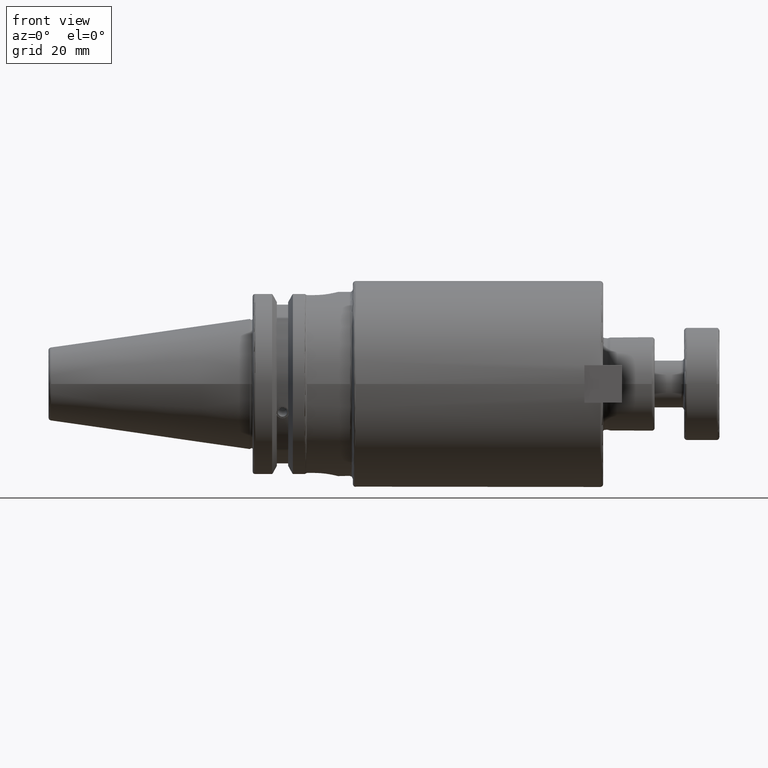
[diagram: clean part render]
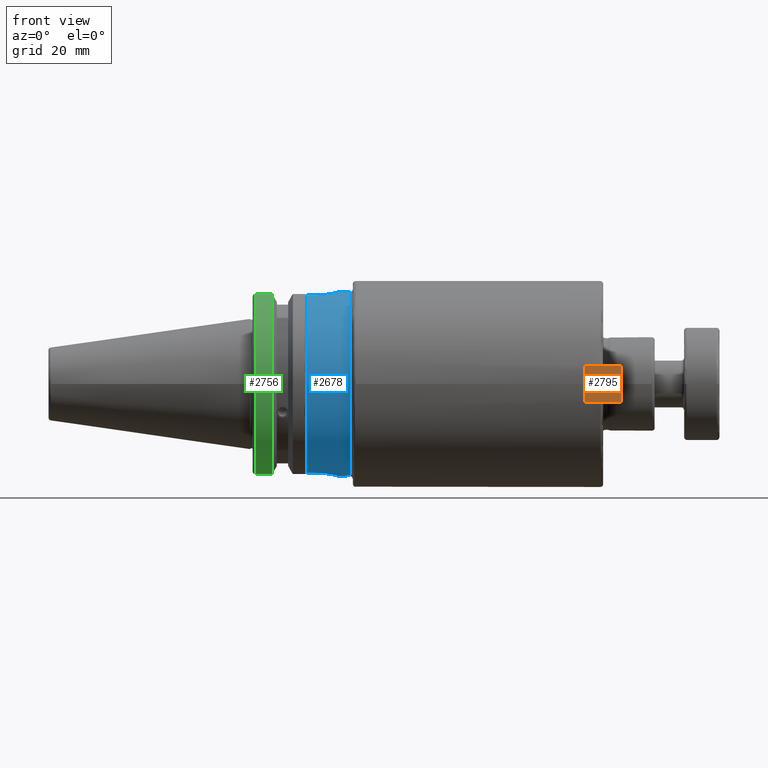
[diagram: same view with three faces highlighted in distinct colors, each labeled with its STEP entity id]
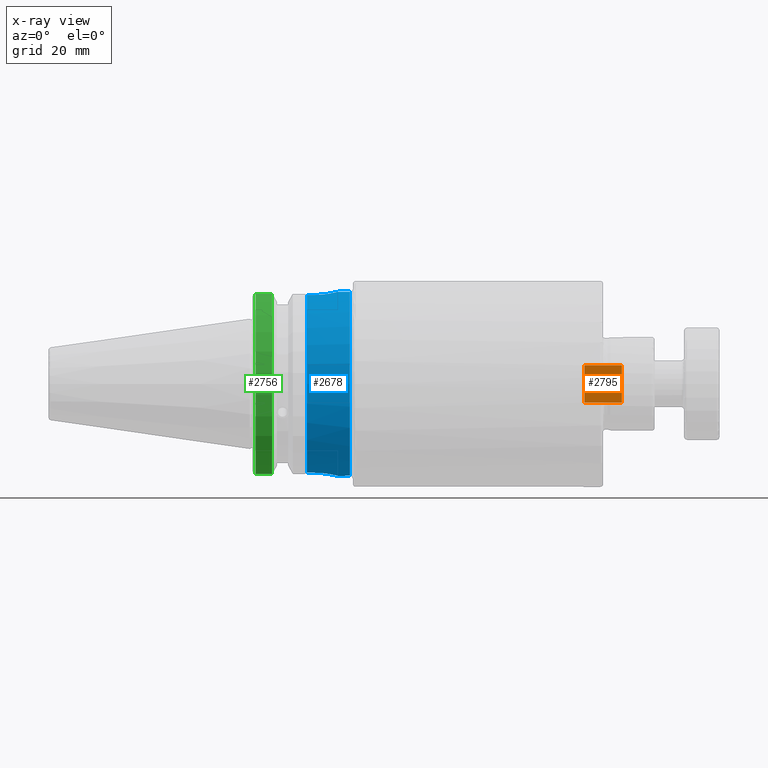
[diagram: x-ray of the same camera — body ghosted, the three highlighted faces saturated]
A machine part, front view with three faces highlighted in distinct colors.
The next image is the same camera in x-ray (body ghosted, the three faces saturated) — at least one of them is partly hidden behind the body in this view.
Their STEP definitions:

[orange] entity #2795 — the highlighted planar face has unit normal (0, -1, -0).
#191=PLANE('',#3194);
#356=FACE_OUTER_BOUND('',#537,.T.);
#537=EDGE_LOOP('',(#2436,#2437,#2438,#2439));
#860=LINE('',#5222,#1033);
#861=LINE('',#5225,#1034);
#862=LINE('',#5227,#1035);
#863=LINE('',#5228,#1036);
#1033=VECTOR('',#3913,10.);
#1034=VECTOR('',#3916,10.);
#1035=VECTOR('',#3917,10.);
#1036=VECTOR('',#3918,10.);
#1334=VERTEX_POINT('',#5215);
#1337=VERTEX_POINT('',#5220);
#1338=VERTEX_POINT('',#5224);
#1339=VERTEX_POINT('',#5226);
#1714=EDGE_CURVE('',#1334,#1337,#860,.T.);
#1715=EDGE_CURVE('',#1338,#1334,#861,.T.);
#1716=EDGE_CURVE('',#1339,#1337,#862,.T.);
#1717=EDGE_CURVE('',#1338,#1339,#863,.T.);
#2436=ORIENTED_EDGE('',*,*,#1715,.T.);
#2437=ORIENTED_EDGE('',*,*,#1714,.T.);
#2438=ORIENTED_EDGE('',*,*,#1716,.F.);
#2439=ORIENTED_EDGE('',*,*,#1717,.F.);
#2795=ADVANCED_FACE('',(#356),#191,.T.);
#3194=AXIS2_PLACEMENT_3D('',#5223,#3914,#3915);
#3913=DIRECTION('',(0.,1.,0.));
#3914=DIRECTION('center_axis',(-1.74838271594513E-16,0.,-1.));
#3915=DIRECTION('ref_axis',(-1.,0.,1.74838271594513E-16));
#3916=DIRECTION('',(-1.,0.,1.74838271594513E-16));
#3917=DIRECTION('',(-1.,0.,1.74838271594513E-16));
#3918=DIRECTION('',(0.,1.,0.));
#5215=CARTESIAN_POINT('',(-6.35,0.,-6.35));
#5220=CARTESIAN_POINT('',(-6.35,12.7,-6.35));
#5222=CARTESIAN_POINT('',(-6.35,0.,-6.35));
#5223=CARTESIAN_POINT('Origin',(6.35,0.,-6.35));
#5224=CARTESIAN_POINT('',(6.35,0.,-6.35));
#5225=CARTESIAN_POINT('',(6.35,0.,-6.35));
#5226=CARTESIAN_POINT('',(6.35,12.7,-6.35));
#5227=CARTESIAN_POINT('',(6.35,12.7,-6.35));
#5228=CARTESIAN_POINT('',(6.35,0.,-6.35));

[blue] entity #2678 — the highlighted cylindrical surface (bore or boss wall) has radius 31.25 mm, axis along (1, 0, 0).
#239=FACE_OUTER_BOUND('',#400,.T.);
#400=EDGE_LOOP('',(#1814,#1815,#1816,#1817,#1818,#1819,#1820,#1821,#1822,
#1823,#1824,#1825,#1826));
#587=CIRCLE('',#2944,31.25);
#588=CIRCLE('',#2945,31.25);
#589=CIRCLE('',#2946,31.25);
#590=CIRCLE('',#2947,31.25);
#591=CIRCLE('',#2948,31.25);
#741=LINE('',#4174,#914);
#742=LINE('',#4177,#915);
#743=LINE('',#4179,#916);
#744=LINE('',#4183,#917);
#745=LINE('',#4204,#918);
#914=VECTOR('',#3296,31.25);
#915=VECTOR('',#3299,10.);
#916=VECTOR('',#3300,10.);
#917=VECTOR('',#3303,10.);
#918=VECTOR('',#3304,10.);
#1085=B_SPLINE_CURVE_WITH_KNOTS('',3,(#4146,#4147,#4148,#4149,#4150,#4151,
#4152,#4153,#4154,#4155,#4156,#4157,#4158,#4159,#4160,#4161,#4162,#4163),
 .UNSPECIFIED.,.F.,.F.,(4,2,2,2,2,2,2,2,4),(-2.48058401696442,-2.1704846734033,
-1.86038532984218,-1.5503386691622,-1.24029200848221,-0.930245347802224,
-0.620198687122237,-0.310099343561118,0.),.UNSPECIFIED.);
#1086=B_SPLINE_CURVE_WITH_KNOTS('',3,(#4185,#4186,#4187,#4188,#4189,#4190,
#4191,#4192,#4193,#4194,#4195,#4196,#4197,#4198,#4199,#4200,#4201,#4202),
 .UNSPECIFIED.,.F.,.F.,(4,2,2,2,2,2,2,2,4),(-2.48058401696442,-2.1704846734033,
-1.86038532984218,-1.5503386691622,-1.24029200848221,-0.930245347802224,
-0.620198687122237,-0.310099343561118,0.),.UNSPECIFIED.);
#1127=VERTEX_POINT('',#4144);
#1128=VERTEX_POINT('',#4145);
#1131=VERTEX_POINT('',#4170);
#1132=VERTEX_POINT('',#4171);
#1133=VERTEX_POINT('',#4173);
#1134=VERTEX_POINT('',#4175);
#1135=VERTEX_POINT('',#4178);
#1136=VERTEX_POINT('',#4180);
#1137=VERTEX_POINT('',#4182);
#1138=VERTEX_POINT('',#4184);
#1139=VERTEX_POINT('',#4203);
#1399=EDGE_CURVE('',#1127,#1128,#1085,.T.);
#1403=EDGE_CURVE('',#1131,#1132,#587,.T.);
#1404=EDGE_CURVE('',#1131,#1133,#741,.T.);
#1405=EDGE_CURVE('',#1134,#1133,#588,.T.);
#1406=EDGE_CURVE('',#1134,#1127,#742,.T.);
#1407=EDGE_CURVE('',#1128,#1135,#743,.T.);
#1408=EDGE_CURVE('',#1136,#1135,#589,.T.);
#1409=EDGE_CURVE('',#1136,#1137,#744,.T.);
#1410=EDGE_CURVE('',#1137,#1138,#1086,.T.);
#1411=EDGE_CURVE('',#1138,#1139,#745,.T.);
#1412=EDGE_CURVE('',#1133,#1139,#590,.T.);
#1413=EDGE_CURVE('',#1132,#1131,#591,.T.);
#1814=ORIENTED_EDGE('',*,*,#1403,.F.);
#1815=ORIENTED_EDGE('',*,*,#1404,.T.);
#1816=ORIENTED_EDGE('',*,*,#1405,.F.);
#1817=ORIENTED_EDGE('',*,*,#1406,.T.);
#1818=ORIENTED_EDGE('',*,*,#1399,.T.);
#1819=ORIENTED_EDGE('',*,*,#1407,.T.);
#1820=ORIENTED_EDGE('',*,*,#1408,.F.);
#1821=ORIENTED_EDGE('',*,*,#1409,.T.);
#1822=ORIENTED_EDGE('',*,*,#1410,.T.);
#1823=ORIENTED_EDGE('',*,*,#1411,.T.);
#1824=ORIENTED_EDGE('',*,*,#1412,.F.);
#1825=ORIENTED_EDGE('',*,*,#1404,.F.);
#1826=ORIENTED_EDGE('',*,*,#1413,.F.);
#2633=CYLINDRICAL_SURFACE('',#2943,31.25);
#2678=ADVANCED_FACE('',(#239),#2633,.T.);
#2943=AXIS2_PLACEMENT_3D('',#4169,#3292,#3293);
#2944=AXIS2_PLACEMENT_3D('',#4172,#3294,#3295);
#2945=AXIS2_PLACEMENT_3D('',#4176,#3297,#3298);
#2946=AXIS2_PLACEMENT_3D('',#4181,#3301,#3302);
#2947=AXIS2_PLACEMENT_3D('',#4205,#3305,#3306);
#2948=AXIS2_PLACEMENT_3D('',#4206,#3307,#3308);
#3292=DIRECTION('center_axis',(1.,0.,0.));
#3293=DIRECTION('ref_axis',(0.,1.,0.));
#3294=DIRECTION('center_axis',(1.,0.,0.));
#3295=DIRECTION('ref_axis',(0.,-1.,1.83697019872103E-16));
#3296=DIRECTION('',(-1.,0.,0.));
#3297=DIRECTION('center_axis',(-1.,0.,0.));
#3298=DIRECTION('ref_axis',(0.,-1.,4.9789962505148E-17));
#3299=DIRECTION('',(1.,0.,0.));
#3300=DIRECTION('',(-1.,0.,0.));
#3301=DIRECTION('center_axis',(-1.,0.,0.));
#3302=DIRECTION('ref_axis',(0.,-1.,4.9789962505148E-17));
#3303=DIRECTION('',(1.,0.,0.));
#3304=DIRECTION('',(-1.,0.,0.));
#3305=DIRECTION('center_axis',(-1.,0.,0.));
#3306=DIRECTION('ref_axis',(0.,-1.,4.9789962505148E-17));
#3307=DIRECTION('center_axis',(1.,0.,0.));
#3308=DIRECTION('ref_axis',(0.,-1.,1.83697019872103E-16));
#4144=CARTESIAN_POINT('',(21.81,-8.19,-30.157692219399));
#4145=CARTESIAN_POINT('',(21.81,8.19,-30.157692219399));
#4146=CARTESIAN_POINT('Ctrl Pts',(21.81,-8.19,-30.157692219399));
#4147=CARTESIAN_POINT('Ctrl Pts',(22.8436644785371,-8.19,-30.157692219399));
#4148=CARTESIAN_POINT('Ctrl Pts',(23.9427289031099,-7.98242969105081,-30.2163776881057));
#4149=CARTESIAN_POINT('Ctrl Pts',(25.9590267300331,-7.14515921681832,-30.4252421272864));
#4150=CARTESIAN_POINT('Ctrl Pts',(26.8767065657426,-6.51570251009308,-30.5720736251644));
#4151=CARTESIAN_POINT('Ctrl Pts',(28.3255794248904,-5.06682965094524,-30.8453094903202));
#4152=CARTESIAN_POINT('Ctrl Pts',(28.955131960371,-4.14909882987699,-30.9899080370957));
#4153=CARTESIAN_POINT('Ctrl Pts',(29.792472555723,-2.13261921574189,-31.193610827595));
#4154=CARTESIAN_POINT('Ctrl Pts',(30.,-1.03348886893329,-31.25));
#4155=CARTESIAN_POINT('Ctrl Pts',(30.,1.03348886893329,-31.25));
#4156=CARTESIAN_POINT('Ctrl Pts',(29.792472555723,2.13261921574188,-31.193610827595));
#4157=CARTESIAN_POINT('Ctrl Pts',(28.955131960371,4.14909882987698,-30.9899080370957));
#4158=CARTESIAN_POINT('Ctrl Pts',(28.3255794248904,5.06682965094524,-30.8453094903202));
#4159=CARTESIAN_POINT('Ctrl Pts',(26.8767065657426,6.51570251009307,-30.5720736251644));
#4160=CARTESIAN_POINT('Ctrl Pts',(25.9590267300331,7.14515921681832,-30.4252421272864));
#4161=CARTESIAN_POINT('Ctrl Pts',(23.9427289031099,7.98242969105081,-30.2163776881057));
#4162=CARTESIAN_POINT('Ctrl Pts',(22.8436644785371,8.19,-30.157692219399));
#4163=CARTESIAN_POINT('Ctrl Pts',(21.81,8.19,-30.157692219399));
#4169=CARTESIAN_POINT('Origin',(27.025,0.,0.));
#4170=CARTESIAN_POINT('',(34.,-31.25,-3.82702124733548E-15));
#4171=CARTESIAN_POINT('',(34.,-3.82702124733548E-15,31.25));
#4172=CARTESIAN_POINT('Origin',(34.,0.,0.));
#4173=CARTESIAN_POINT('',(19.4160254037844,-31.25,-3.82702124733548E-15));
#4174=CARTESIAN_POINT('',(27.025,-31.25,-3.82702124733548E-15));
#4175=CARTESIAN_POINT('',(19.4160254037845,-8.19,-30.157692219399));
#4176=CARTESIAN_POINT('Origin',(19.4160254037844,0.,0.));
#4177=CARTESIAN_POINT('',(27.025,-8.19,-30.157692219399));
#4178=CARTESIAN_POINT('',(19.4160254037845,8.19,-30.157692219399));
#4179=CARTESIAN_POINT('',(27.025,8.19000000000001,-30.157692219399));
#4180=CARTESIAN_POINT('',(19.4160254037844,8.19,30.157692219399));
#4181=CARTESIAN_POINT('Origin',(19.4160254037844,0.,0.));
#4182=CARTESIAN_POINT('',(21.81,8.19,30.157692219399));
#4183=CARTESIAN_POINT('',(27.025,8.19,30.157692219399));
#4184=CARTESIAN_POINT('',(21.81,-8.19000000000001,30.157692219399));
#4185=CARTESIAN_POINT('Ctrl Pts',(21.81,8.19,30.157692219399));
#4186=CARTESIAN_POINT('Ctrl Pts',(22.8436644785371,8.19,30.157692219399));
#4187=CARTESIAN_POINT('Ctrl Pts',(23.9427289031099,7.98242969105081,30.2163776881057));
#4188=CARTESIAN_POINT('Ctrl Pts',(25.9590267300331,7.14515921681832,30.4252421272864));
#4189=CARTESIAN_POINT('Ctrl Pts',(26.8767065657426,6.51570251009308,30.5720736251644));
#4190=CARTESIAN_POINT('Ctrl Pts',(28.3255794248904,5.06682965094525,30.8453094903202));
#4191=CARTESIAN_POINT('Ctrl Pts',(28.955131960371,4.14909882987699,30.9899080370957));
#4192=CARTESIAN_POINT('Ctrl Pts',(29.792472555723,2.13261921574189,31.193610827595));
#4193=CARTESIAN_POINT('Ctrl Pts',(30.,1.0334888689333,31.25));
#4194=CARTESIAN_POINT('Ctrl Pts',(30.,-1.03348886893328,31.25));
#4195=CARTESIAN_POINT('Ctrl Pts',(29.792472555723,-2.13261921574188,31.193610827595));
#4196=CARTESIAN_POINT('Ctrl Pts',(28.955131960371,-4.14909882987698,30.9899080370957));
#4197=CARTESIAN_POINT('Ctrl Pts',(28.3255794248904,-5.06682965094523,30.8453094903202));
#4198=CARTESIAN_POINT('Ctrl Pts',(26.8767065657426,-6.51570251009307,30.5720736251644));
#4199=CARTESIAN_POINT('Ctrl Pts',(25.9590267300331,-7.14515921681832,30.4252421272864));
#4200=CARTESIAN_POINT('Ctrl Pts',(23.9427289031099,-7.98242969105081,30.2163776881057));
#4201=CARTESIAN_POINT('Ctrl Pts',(22.8436644785371,-8.19,30.157692219399));
#4202=CARTESIAN_POINT('Ctrl Pts',(21.81,-8.19,30.157692219399));
#4203=CARTESIAN_POINT('',(19.4160254037844,-8.19000000000001,30.157692219399));
#4204=CARTESIAN_POINT('',(27.025,-8.19000000000001,30.157692219399));
#4205=CARTESIAN_POINT('Origin',(19.4160254037844,0.,0.));
#4206=CARTESIAN_POINT('Origin',(34.,0.,0.));

[green] entity #2756 — the highlighted cylindrical surface (partial cylindrical patch) has radius 31.75 mm, axis along (1, 0, 0).
#317=FACE_OUTER_BOUND('',#491,.T.);
#491=EDGE_LOOP('',(#2246,#2247,#2248,#2249));
#669=CIRCLE('',#3120,31.75);
#671=CIRCLE('',#3124,31.75);
#834=LINE('',#5059,#1007);
#835=LINE('',#5065,#1008);
#1007=VECTOR('',#3745,10.);
#1008=VECTOR('',#3748,10.);
#1302=VERTEX_POINT('',#5030);
#1303=VERTEX_POINT('',#5039);
#1305=VERTEX_POINT('',#5058);
#1306=VERTEX_POINT('',#5064);
#1645=EDGE_CURVE('',#1302,#1303,#669,.T.);
#1649=EDGE_CURVE('',#1303,#1305,#834,.T.);
#1651=EDGE_CURVE('',#1306,#1302,#835,.T.);
#1652=EDGE_CURVE('',#1305,#1306,#671,.T.);
#2246=ORIENTED_EDGE('',*,*,#1645,.F.);
#2247=ORIENTED_EDGE('',*,*,#1651,.F.);
#2248=ORIENTED_EDGE('',*,*,#1652,.F.);
#2249=ORIENTED_EDGE('',*,*,#1649,.F.);
#2660=CYLINDRICAL_SURFACE('',#3123,31.75);
#2756=ADVANCED_FACE('',(#317),#2660,.T.);
#3120=AXIS2_PLACEMENT_3D('',#5040,#3739,#3740);
#3123=AXIS2_PLACEMENT_3D('',#5063,#3746,#3747);
#3124=AXIS2_PLACEMENT_3D('',#5066,#3749,#3750);
#3739=DIRECTION('center_axis',(-1.,0.,0.));
#3740=DIRECTION('ref_axis',(0.,-1.,1.60812264967664E-16));
#3745=DIRECTION('',(1.,0.,0.));
#3746=DIRECTION('center_axis',(1.,0.,0.));
#3747=DIRECTION('ref_axis',(0.,-1.,1.22464679914735E-16));
#3748=DIRECTION('',(-1.,0.,0.));
#3749=DIRECTION('center_axis',(1.,0.,0.));
#3750=DIRECTION('ref_axis',(0.,0.,-1.));
#5030=CARTESIAN_POINT('',(2.,-8.67204822802685,-30.5427254764662));
#5039=CARTESIAN_POINT('',(2.,-8.67204822802685,30.5427254764662));
#5040=CARTESIAN_POINT('Origin',(2.,0.,0.));
#5058=CARTESIAN_POINT('',(7.60793323092436,-8.67204822802685,30.5427254764662));
#5059=CARTESIAN_POINT('',(4.30396661546218,-8.67204822802685,30.5427254764662));
#5063=CARTESIAN_POINT('Origin',(4.30396661546218,0.,0.));
#5064=CARTESIAN_POINT('',(7.60793323092436,-8.67204822802685,-30.5427254764662));
#5065=CARTESIAN_POINT('',(4.30396661546218,-8.67204822802685,-30.5427254764662));
#5066=CARTESIAN_POINT('Origin',(7.60793323092436,0.,0.));